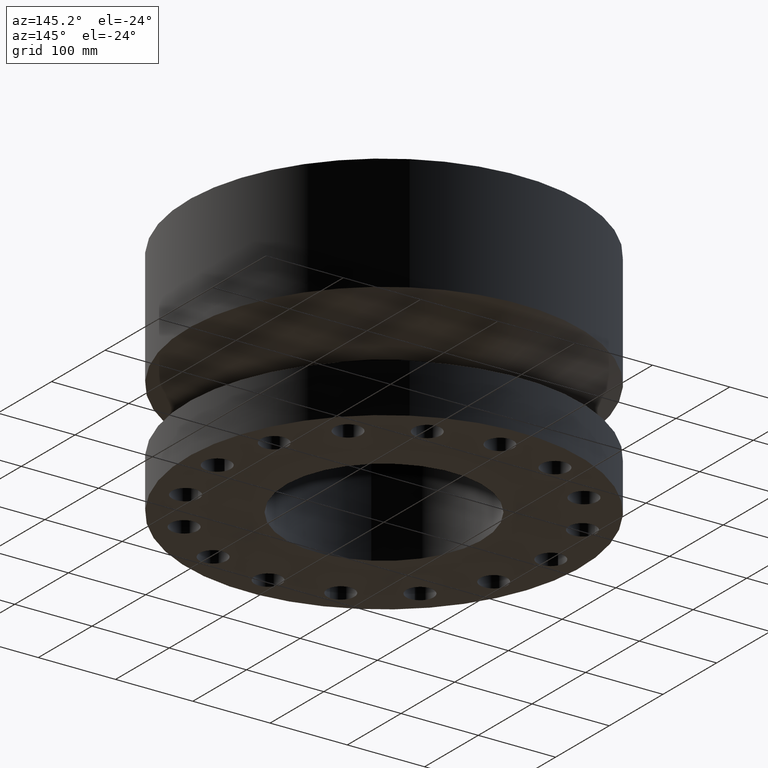
[diagram: clean part render]
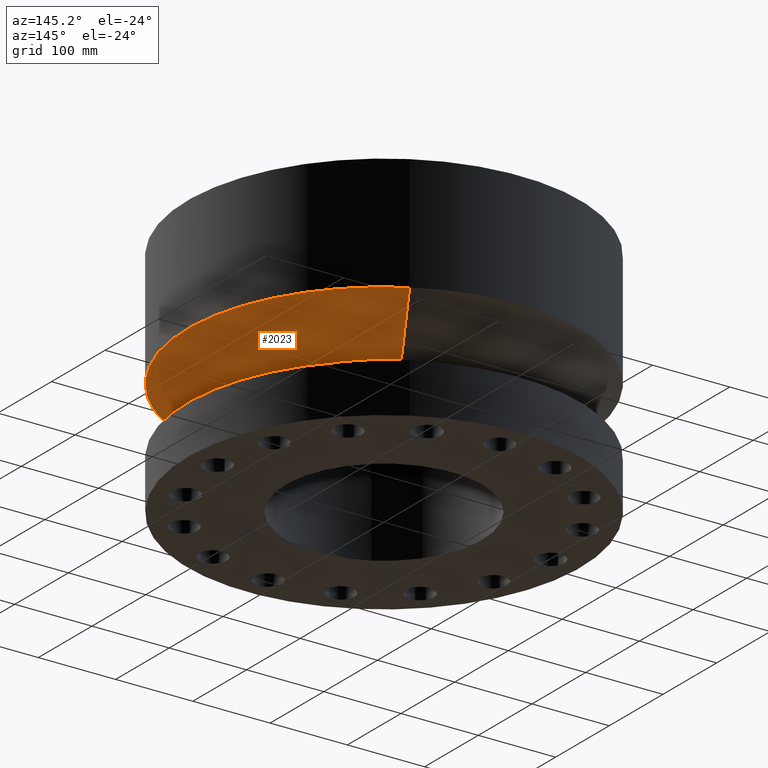
[diagram: same view with one face highlighted and labeled with its STEP entity id]
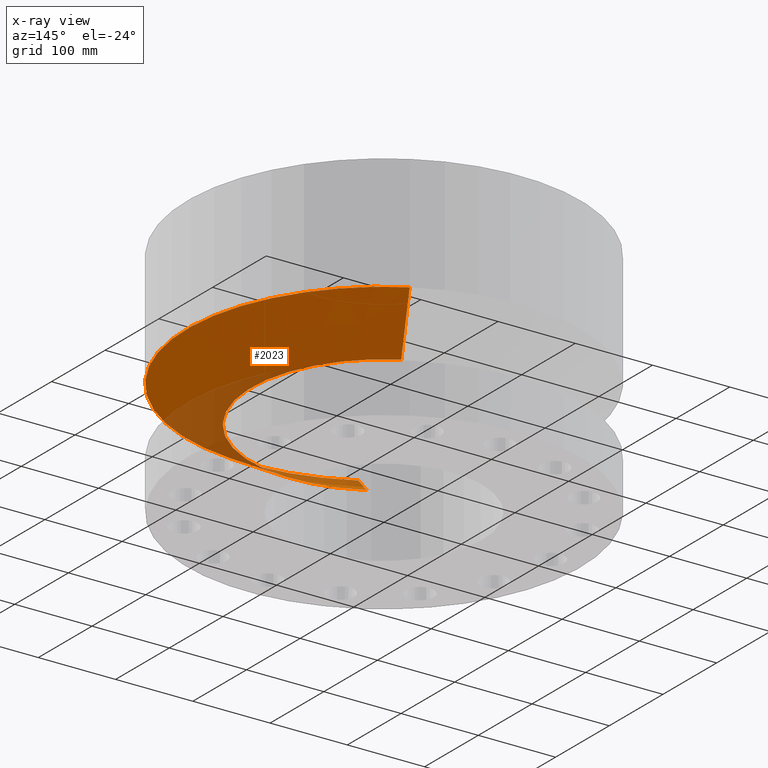
[diagram: x-ray of the same camera — body ghosted, the highlighted face saturated]
A machine part, auxiliary view. The second image highlights one B-rep face of the part: STEP entity #2023.
The next image is the same camera in x-ray: the body ghosted, the highlighted face saturated — about 18% of this face is hidden behind the body in this view.
In plain terms, the highlighted conical surface has half-angle 60 deg.
Its self-contained STEP definition (entity closure, byte-faithful):
#1451=AXIS2_PLACEMENT_3D('Circle Axis2P3D',#1449,#1450,$) ;
#1996=AXIS2_PLACEMENT_3D('Cone Axis2P3D',#1993,#1994,#1995) ;
#2007=AXIS2_PLACEMENT_3D('Circle Axis2P3D',#2005,#2006,$) ;
#1446=CARTESIAN_POINT('Vertex',(3.23612238559,5.92368229278,4.00000000002)) ;
#1449=CARTESIAN_POINT('Axis2P3D Location',(0.,0.,4.00000000002)) ;
#1453=CARTESIAN_POINT('Vertex',(-3.23612238559,-5.92368229278,4.00000000002)) ;
#1993=CARTESIAN_POINT('Axis2P3D Location',(0.,0.,4.00000000002)) ;
#1998=CARTESIAN_POINT('Line Origine',(4.01518888583,7.34975395586,4.93819418745)) ;
#2002=CARTESIAN_POINT('Vertex',(4.79425538606,8.77582561894,5.87638837489)) ;
#2005=CARTESIAN_POINT('Axis2P3D Location',(0.,0.,5.87638837489)) ;
#2009=CARTESIAN_POINT('Vertex',(-4.79425538606,-8.77582561894,5.87638837489)) ;
#2012=CARTESIAN_POINT('Line Origine',(-4.01518888583,-7.34975395586,4.93819418745)) ;
#1450=DIRECTION('Axis2P3D Direction',(0.,0.,-0.0393700787402)) ;
#1994=DIRECTION('Axis2P3D Direction',(-0.,-0.,0.0393700787402)) ;
#1995=DIRECTION('Axis2P3D XDirection',(0.0188750212049,0.0345504945626,0.)) ;
#1999=DIRECTION('Vector Direction',(0.0163462478604,0.0299216060045,0.0196850393701)) ;
#2006=DIRECTION('Axis2P3D Direction',(-0.,0.,0.0393700787402)) ;
#2013=DIRECTION('Vector Direction',(-0.0163462478604,-0.0299216060045,0.0196850393701)) ;
#2000=VECTOR('Line Direction',#1999,0.0393700787402) ;
#2014=VECTOR('Line Direction',#2013,0.0393700787402) ;
#2018=ORIENTED_EDGE('',*,*,#1455,.F.) ;
#2019=ORIENTED_EDGE('',*,*,#2004,.T.) ;
#2020=ORIENTED_EDGE('',*,*,#2011,.T.) ;
#2021=ORIENTED_EDGE('',*,*,#2016,.F.) ;
#2023=ADVANCED_FACE('PartBody',(#2022),#1997,.T.) ;
#1452=CIRCLE('generated circle',#1451,6.75000000003) ;
#2008=CIRCLE('generated circle',#2007,10.) ;
#1997=CONICAL_SURFACE('Cone',#1996,6.75000000003,1.0471975512) ;
#1455=EDGE_CURVE('',#1447,#1454,#1452,.T.) ;
#2004=EDGE_CURVE('',#1447,#2003,#2001,.T.) ;
#2011=EDGE_CURVE('',#2003,#2010,#2008,.F.) ;
#2016=EDGE_CURVE('',#1454,#2010,#2015,.T.) ;
#2017=EDGE_LOOP('',(#2018,#2019,#2020,#2021)) ;
#2022=FACE_OUTER_BOUND('',#2017,.T.) ;
#2001=LINE('Line',#1998,#2000) ;
#2015=LINE('Line',#2012,#2014) ;
#1447=VERTEX_POINT('',#1446) ;
#1454=VERTEX_POINT('',#1453) ;
#2003=VERTEX_POINT('',#2002) ;
#2010=VERTEX_POINT('',#2009) ;